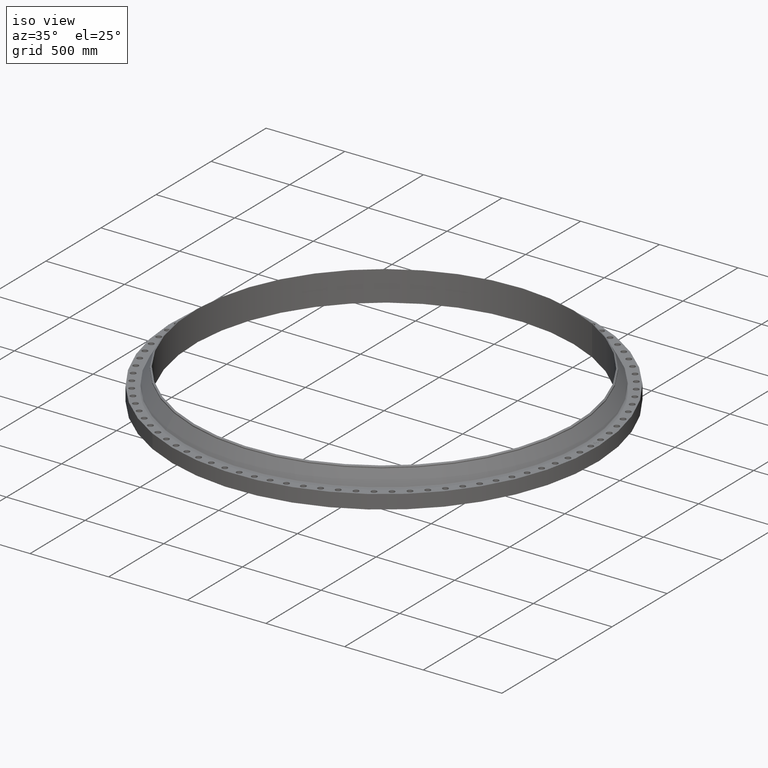
[diagram: clean part render]
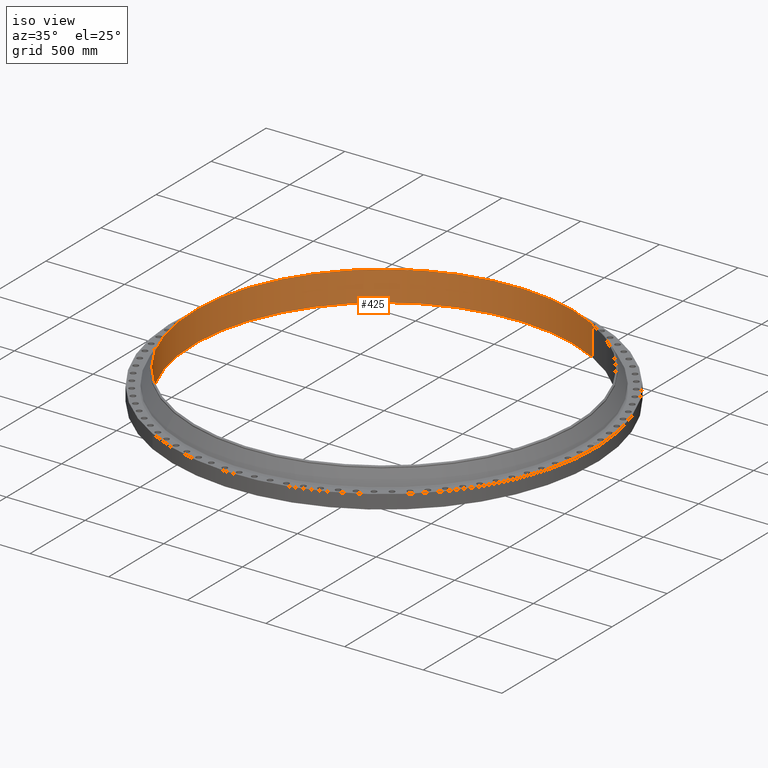
[diagram: tour spotlight — one face highlighted and labeled with its STEP entity id]
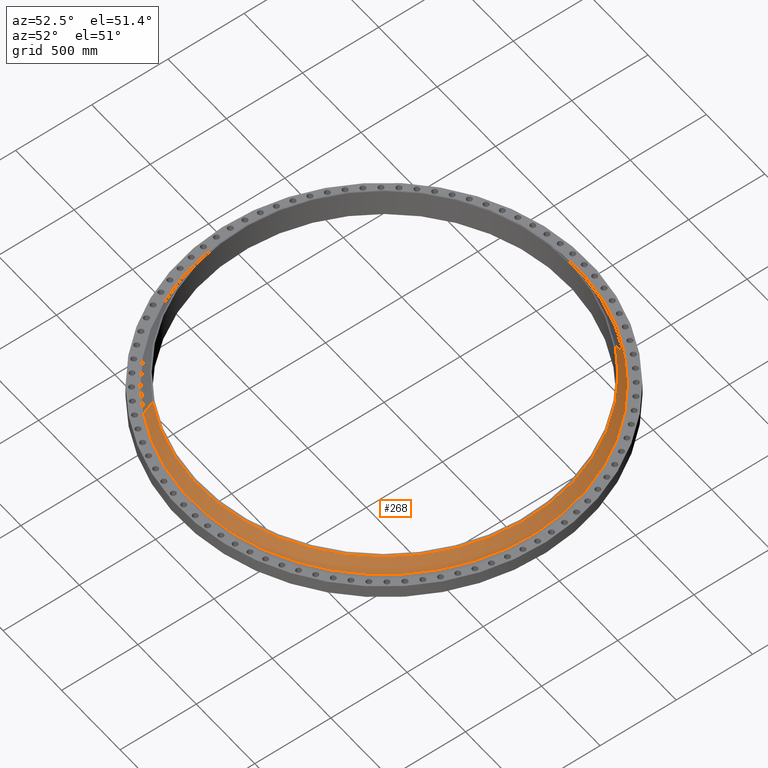
[diagram: tour spotlight — one face highlighted and labeled with its STEP entity id]
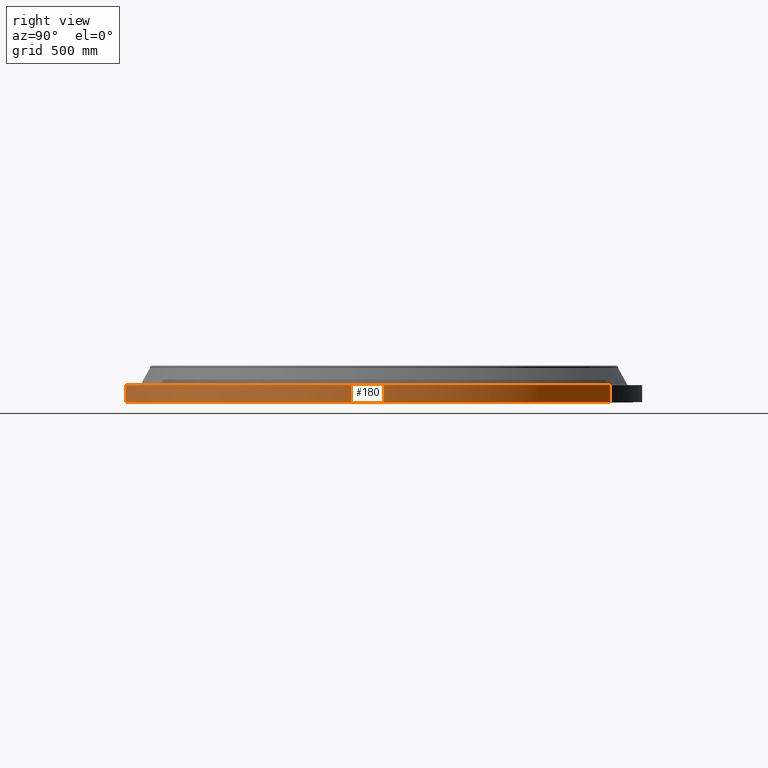
[diagram: tour spotlight — one face highlighted and labeled with its STEP entity id]
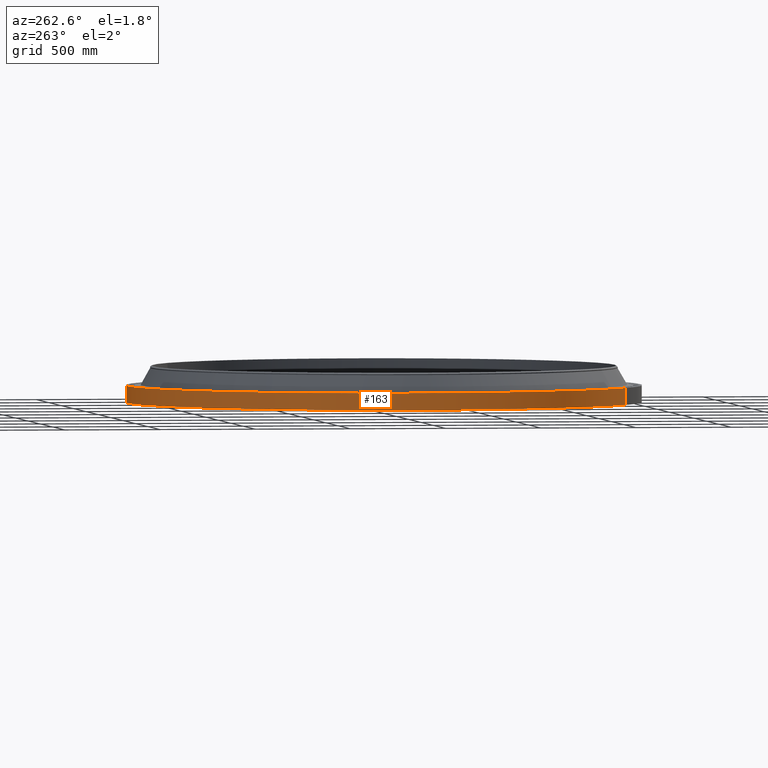
[diagram: tour spotlight — one face highlighted and labeled with its STEP entity id]
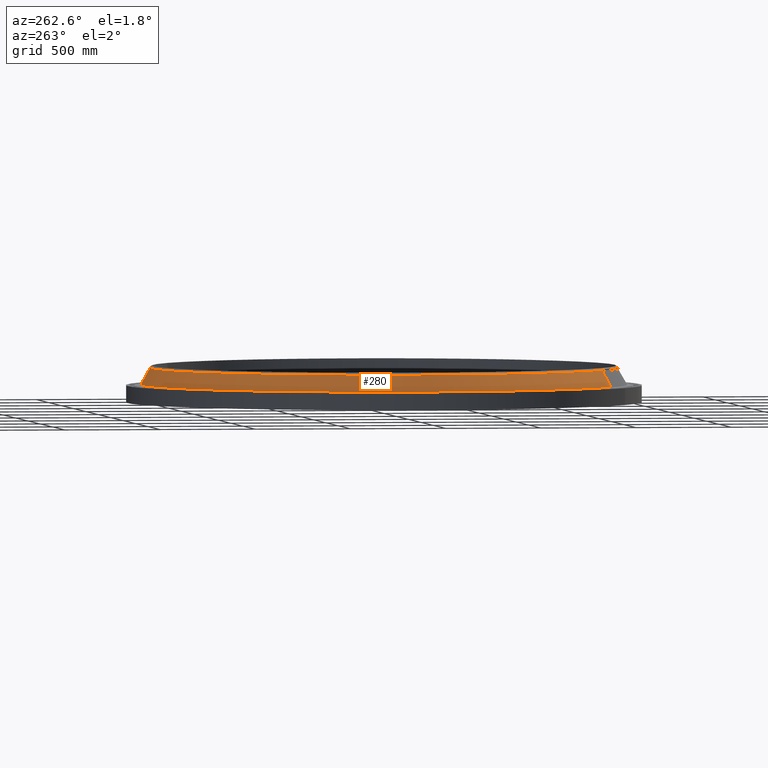
[diagram: tour spotlight — one face highlighted and labeled with its STEP entity id]
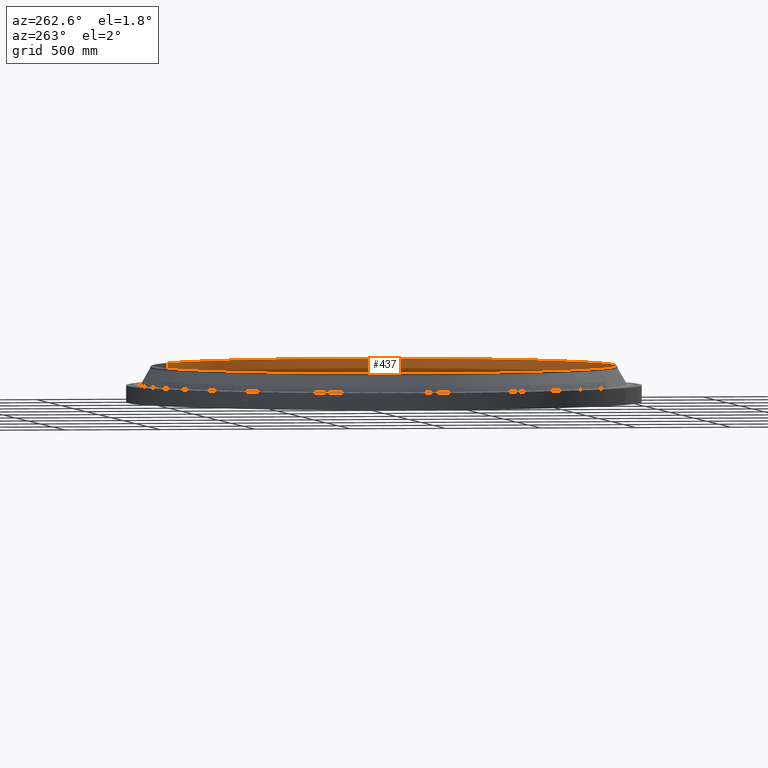
[diagram: tour spotlight — one face highlighted and labeled with its STEP entity id]
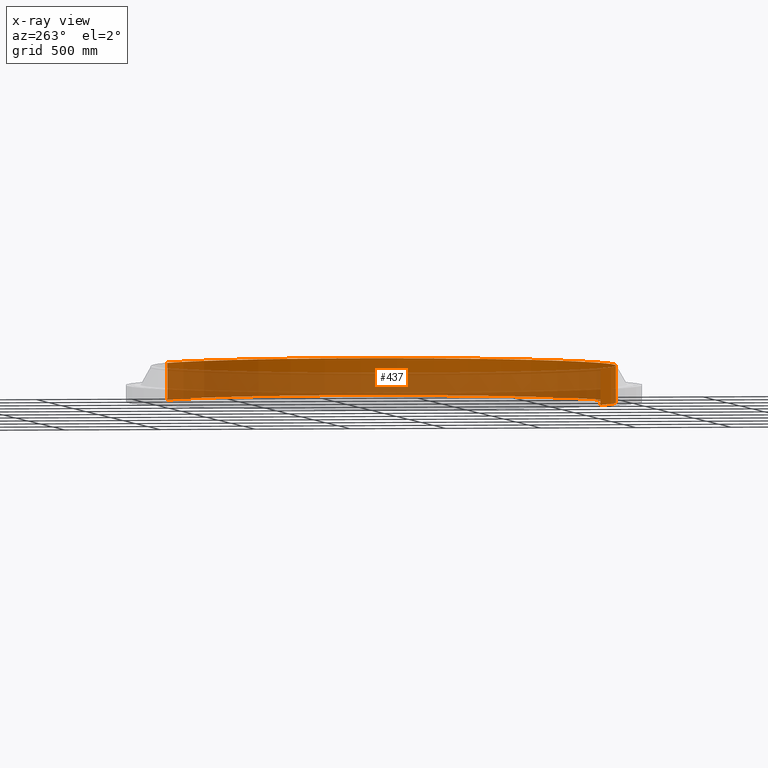
[diagram: x-ray of the same camera — body ghosted, this tour face saturated]
A machine part: a face-by-face anatomy tour. The part has 665 B-rep faces; the first image is the clean iso view, then the 6 largest visible faces are spotlighted one at a time (largest first), each with its STEP entity span.

Face 1 — iso view, entity #425. In plain terms, the highlighted cylindrical surface (partial cylindrical patch) has radius 1209.67 mm, axis along (0, 0, -1).
Definition (entity closure, byte-faithful):
#378=AXIS2_PLACEMENT_3D('Circle Axis2P3D',#376,#377,$) ;
#398=AXIS2_PLACEMENT_3D('Cylinder Axis2P3D',#395,#396,#397) ;
#409=AXIS2_PLACEMENT_3D('Circle Axis2P3D',#407,#408,$) ;
#376=CARTESIAN_POINT('Axis2P3D Location',(0.,0.,7.50000000003)) ;
#380=CARTESIAN_POINT('Vertex',(-22.8326412761,-41.7948695102,7.50000000003)) ;
#382=CARTESIAN_POINT('Vertex',(22.8326412761,41.7948695102,7.50000000003)) ;
#395=CARTESIAN_POINT('Axis2P3D Location',(0.,0.,3.76875000002)) ;
#400=CARTESIAN_POINT('Line Origine',(-22.8326412761,-41.7948695102,3.71875000001)) ;
#404=CARTESIAN_POINT('Vertex',(-22.8326412761,-41.7948695102,-0.0625000000003)) ;
#407=CARTESIAN_POINT('Axis2P3D Location',(0.,0.,-0.0625000000003)) ;
#411=CARTESIAN_POINT('Vertex',(22.8326412761,41.7948695102,-0.0625000000003)) ;
#414=CARTESIAN_POINT('Line Origine',(22.8326412761,41.7948695102,3.71875000001)) ;
#377=DIRECTION('Axis2P3D Direction',(0.,-0.,-0.0393700787402)) ;
#396=DIRECTION('Axis2P3D Direction',(0.,0.,-0.0393700787402)) ;
#397=DIRECTION('Axis2P3D XDirection',(0.0188750212049,0.0345504945626,0.)) ;
#401=DIRECTION('Vector Direction',(0.,0.,-0.0393700787402)) ;
#408=DIRECTION('Axis2P3D Direction',(0.,0.,-0.0393700787402)) ;
#415=DIRECTION('Vector Direction',(0.,0.,-0.0393700787402)) ;
#402=VECTOR('Line Direction',#401,0.0393700787402) ;
#416=VECTOR('Line Direction',#415,0.0393700787402) ;
#420=ORIENTED_EDGE('',*,*,#406,.T.) ;
#421=ORIENTED_EDGE('',*,*,#413,.T.) ;
#422=ORIENTED_EDGE('',*,*,#418,.F.) ;
#423=ORIENTED_EDGE('',*,*,#384,.F.) ;
#425=ADVANCED_FACE('PartBody',(#424),#399,.F.) ;
#379=CIRCLE('generated circle',#378,47.6250000002) ;
#410=CIRCLE('generated circle',#409,47.6250000002) ;
#399=CYLINDRICAL_SURFACE('generated cylinder',#398,47.6250000002) ;
#384=EDGE_CURVE('',#381,#383,#379,.T.) ;
#406=EDGE_CURVE('',#381,#405,#403,.T.) ;
#413=EDGE_CURVE('',#405,#412,#410,.T.) ;
#418=EDGE_CURVE('',#383,#412,#417,.T.) ;
#419=EDGE_LOOP('',(#420,#421,#422,#423)) ;
#424=FACE_OUTER_BOUND('',#419,.T.) ;
#403=LINE('Line',#400,#402) ;
#417=LINE('Line',#414,#416) ;
#381=VERTEX_POINT('',#380) ;
#383=VERTEX_POINT('',#382) ;
#405=VERTEX_POINT('',#404) ;
#412=VERTEX_POINT('',#411) ;

Face 2 — auxiliary view, entity #268. In plain terms, the highlighted conical surface has half-angle 29.577 deg.
Definition (entity closure, byte-faithful):
#204=AXIS2_PLACEMENT_3D('Circle Axis2P3D',#202,#203,$) ;
#241=AXIS2_PLACEMENT_3D('Cone Axis2P3D',#238,#239,#240) ;
#252=AXIS2_PLACEMENT_3D('Circle Axis2P3D',#250,#251,$) ;
#199=CARTESIAN_POINT('Vertex',(23.9368291004,43.816071765,3.62660339613)) ;
#202=CARTESIAN_POINT('Axis2P3D Location',(0.,0.,3.62660339613)) ;
#206=CARTESIAN_POINT('Vertex',(-23.9368291004,-43.816071765,3.62660339613)) ;
#238=CARTESIAN_POINT('Axis2P3D Location',(0.,0.,7.02398984384)) ;
#243=CARTESIAN_POINT('Line Origine',(23.4746274767,42.970017368,5.32529661999)) ;
#247=CARTESIAN_POINT('Vertex',(23.0124258531,42.1239629709,7.02398984384)) ;
#250=CARTESIAN_POINT('Axis2P3D Location',(0.,0.,7.02398984384)) ;
#254=CARTESIAN_POINT('Vertex',(-23.0124258531,-42.1239629709,7.02398984384)) ;
#257=CARTESIAN_POINT('Line Origine',(-23.4746274767,-42.970017368,5.32529661999)) ;
#203=DIRECTION('Axis2P3D Direction',(0.,0.,-0.0393700787402)) ;
#239=DIRECTION('Axis2P3D Direction',(0.,0.,-0.0393700787402)) ;
#240=DIRECTION('Axis2P3D XDirection',(-0.0188750212049,-0.0345504945626,0.)) ;
#244=DIRECTION('Vector Direction',(0.00931645405992,0.0170536547666,-0.0342400298314)) ;
#251=DIRECTION('Axis2P3D Direction',(0.,0.,-0.0393700787402)) ;
#258=DIRECTION('Vector Direction',(-0.00931645405992,-0.0170536547666,-0.0342400298314)) ;
#245=VECTOR('Line Direction',#244,0.0393700787402) ;
#259=VECTOR('Line Direction',#258,0.0393700787402) ;
#263=ORIENTED_EDGE('',*,*,#208,.F.) ;
#264=ORIENTED_EDGE('',*,*,#249,.T.) ;
#265=ORIENTED_EDGE('',*,*,#256,.T.) ;
#266=ORIENTED_EDGE('',*,*,#261,.F.) ;
#268=ADVANCED_FACE('PartBody',(#267),#242,.T.) ;
#205=CIRCLE('generated circle',#204,49.9281476954) ;
#253=CIRCLE('generated circle',#252,48.0000000002) ;
#242=CONICAL_SURFACE('Cone',#241,48.0000000002,0.516208704301) ;
#208=EDGE_CURVE('',#200,#207,#205,.T.) ;
#249=EDGE_CURVE('',#200,#248,#246,.F.) ;
#256=EDGE_CURVE('',#248,#255,#253,.T.) ;
#261=EDGE_CURVE('',#207,#255,#260,.F.) ;
#262=EDGE_LOOP('',(#263,#264,#265,#266)) ;
#267=FACE_OUTER_BOUND('',#262,.T.) ;
#246=LINE('Line',#243,#245) ;
#260=LINE('Line',#257,#259) ;
#200=VERTEX_POINT('',#199) ;
#207=VERTEX_POINT('',#206) ;
#248=VERTEX_POINT('',#247) ;
#255=VERTEX_POINT('',#254) ;

Face 3 — right view, entity #180. In plain terms, the highlighted cylindrical surface (partial cylindrical patch) has radius 1346.2 mm, axis along (0, 0, -1).
Definition (entity closure, byte-faithful):
#127=AXIS2_PLACEMENT_3D('Cylinder Axis2P3D',#124,#125,#126) ;
#166=AXIS2_PLACEMENT_3D('Circle Axis2P3D',#164,#165,$) ;
#171=AXIS2_PLACEMENT_3D('Circle Axis2P3D',#169,#170,$) ;
#124=CARTESIAN_POINT('Axis2P3D Location',(0.,0.,3.76875000002)) ;
#133=CARTESIAN_POINT('Vertex',(-25.4095535461,-46.5118757804,6.15430716013E-015)) ;
#135=CARTESIAN_POINT('Vertex',(25.4095535461,46.5118757804,6.15430716013E-015)) ;
#138=CARTESIAN_POINT('Line Origine',(-25.4095535461,-46.5118757804,1.75000000001)) ;
#142=CARTESIAN_POINT('Vertex',(-25.4095535461,-46.5118757804,3.50000000001)) ;
#149=CARTESIAN_POINT('Vertex',(25.4095535461,46.5118757804,3.50000000001)) ;
#152=CARTESIAN_POINT('Line Origine',(25.4095535461,46.5118757804,1.75000000001)) ;
#164=CARTESIAN_POINT('Axis2P3D Location',(0.,0.,6.71378962923E-015)) ;
#169=CARTESIAN_POINT('Axis2P3D Location',(0.,0.,3.50000000001)) ;
#125=DIRECTION('Axis2P3D Direction',(0.,0.,-0.0393700787402)) ;
#126=DIRECTION('Axis2P3D XDirection',(0.0188750212049,0.0345504945626,0.)) ;
#139=DIRECTION('Vector Direction',(0.,0.,-0.0393700787402)) ;
#153=DIRECTION('Vector Direction',(0.,0.,-0.0393700787402)) ;
#165=DIRECTION('Axis2P3D Direction',(0.,0.,-0.0393700787402)) ;
#170=DIRECTION('Axis2P3D Direction',(0.,0.,-0.0393700787402)) ;
#140=VECTOR('Line Direction',#139,0.0393700787402) ;
#154=VECTOR('Line Direction',#153,0.0393700787402) ;
#175=ORIENTED_EDGE('',*,*,#168,.F.) ;
#176=ORIENTED_EDGE('',*,*,#156,.T.) ;
#177=ORIENTED_EDGE('',*,*,#173,.T.) ;
#178=ORIENTED_EDGE('',*,*,#144,.F.) ;
#180=ADVANCED_FACE('PartBody',(#179),#128,.T.) ;
#167=CIRCLE('generated circle',#166,53.0000000002) ;
#172=CIRCLE('generated circle',#171,53.0000000002) ;
#128=CYLINDRICAL_SURFACE('generated cylinder',#127,53.0000000002) ;
#144=EDGE_CURVE('',#134,#143,#141,.F.) ;
#156=EDGE_CURVE('',#136,#150,#155,.F.) ;
#168=EDGE_CURVE('',#136,#134,#167,.T.) ;
#173=EDGE_CURVE('',#150,#143,#172,.T.) ;
#174=EDGE_LOOP('',(#175,#176,#177,#178)) ;
#179=FACE_OUTER_BOUND('',#174,.T.) ;
#141=LINE('Line',#138,#140) ;
#155=LINE('Line',#152,#154) ;
#134=VERTEX_POINT('',#133) ;
#136=VERTEX_POINT('',#135) ;
#143=VERTEX_POINT('',#142) ;
#150=VERTEX_POINT('',#149) ;

Face 4 — auxiliary view, entity #163. In plain terms, the highlighted cylindrical surface (partial cylindrical patch) has radius 1346.2 mm, axis along (0, 0, -1).
Definition (entity closure, byte-faithful):
#127=AXIS2_PLACEMENT_3D('Cylinder Axis2P3D',#124,#125,#126) ;
#131=AXIS2_PLACEMENT_3D('Circle Axis2P3D',#129,#130,$) ;
#147=AXIS2_PLACEMENT_3D('Circle Axis2P3D',#145,#146,$) ;
#124=CARTESIAN_POINT('Axis2P3D Location',(0.,0.,3.76875000002)) ;
#129=CARTESIAN_POINT('Axis2P3D Location',(0.,0.,6.71378962923E-015)) ;
#133=CARTESIAN_POINT('Vertex',(-25.4095535461,-46.5118757804,6.15430716013E-015)) ;
#135=CARTESIAN_POINT('Vertex',(25.4095535461,46.5118757804,6.15430716013E-015)) ;
#138=CARTESIAN_POINT('Line Origine',(-25.4095535461,-46.5118757804,1.75000000001)) ;
#142=CARTESIAN_POINT('Vertex',(-25.4095535461,-46.5118757804,3.50000000001)) ;
#145=CARTESIAN_POINT('Axis2P3D Location',(0.,0.,3.50000000001)) ;
#149=CARTESIAN_POINT('Vertex',(25.4095535461,46.5118757804,3.50000000001)) ;
#152=CARTESIAN_POINT('Line Origine',(25.4095535461,46.5118757804,1.75000000001)) ;
#125=DIRECTION('Axis2P3D Direction',(0.,0.,-0.0393700787402)) ;
#126=DIRECTION('Axis2P3D XDirection',(0.0188750212049,0.0345504945626,0.)) ;
#130=DIRECTION('Axis2P3D Direction',(0.,0.,-0.0393700787402)) ;
#139=DIRECTION('Vector Direction',(0.,0.,-0.0393700787402)) ;
#146=DIRECTION('Axis2P3D Direction',(0.,0.,-0.0393700787402)) ;
#153=DIRECTION('Vector Direction',(0.,0.,-0.0393700787402)) ;
#140=VECTOR('Line Direction',#139,0.0393700787402) ;
#154=VECTOR('Line Direction',#153,0.0393700787402) ;
#158=ORIENTED_EDGE('',*,*,#137,.F.) ;
#159=ORIENTED_EDGE('',*,*,#144,.T.) ;
#160=ORIENTED_EDGE('',*,*,#151,.T.) ;
#161=ORIENTED_EDGE('',*,*,#156,.F.) ;
#163=ADVANCED_FACE('PartBody',(#162),#128,.T.) ;
#132=CIRCLE('generated circle',#131,53.0000000002) ;
#148=CIRCLE('generated circle',#147,53.0000000002) ;
#128=CYLINDRICAL_SURFACE('generated cylinder',#127,53.0000000002) ;
#137=EDGE_CURVE('',#134,#136,#132,.T.) ;
#144=EDGE_CURVE('',#134,#143,#141,.F.) ;
#151=EDGE_CURVE('',#143,#150,#148,.T.) ;
#156=EDGE_CURVE('',#136,#150,#155,.F.) ;
#157=EDGE_LOOP('',(#158,#159,#160,#161)) ;
#162=FACE_OUTER_BOUND('',#157,.T.) ;
#141=LINE('Line',#138,#140) ;
#155=LINE('Line',#152,#154) ;
#134=VERTEX_POINT('',#133) ;
#136=VERTEX_POINT('',#135) ;
#143=VERTEX_POINT('',#142) ;
#150=VERTEX_POINT('',#149) ;

Face 5 — auxiliary view, entity #280. In plain terms, the highlighted conical surface has half-angle 29.577 deg.
Definition (entity closure, byte-faithful):
#228=AXIS2_PLACEMENT_3D('Circle Axis2P3D',#226,#227,$) ;
#241=AXIS2_PLACEMENT_3D('Cone Axis2P3D',#238,#239,#240) ;
#271=AXIS2_PLACEMENT_3D('Circle Axis2P3D',#269,#270,$) ;
#199=CARTESIAN_POINT('Vertex',(23.9368291004,43.816071765,3.62660339613)) ;
#206=CARTESIAN_POINT('Vertex',(-23.9368291004,-43.816071765,3.62660339613)) ;
#226=CARTESIAN_POINT('Axis2P3D Location',(0.,0.,3.62660339613)) ;
#238=CARTESIAN_POINT('Axis2P3D Location',(0.,0.,7.02398984384)) ;
#243=CARTESIAN_POINT('Line Origine',(23.4746274767,42.970017368,5.32529661999)) ;
#247=CARTESIAN_POINT('Vertex',(23.0124258531,42.1239629709,7.02398984384)) ;
#254=CARTESIAN_POINT('Vertex',(-23.0124258531,-42.1239629709,7.02398984384)) ;
#257=CARTESIAN_POINT('Line Origine',(-23.4746274767,-42.970017368,5.32529661999)) ;
#269=CARTESIAN_POINT('Axis2P3D Location',(0.,0.,7.02398984384)) ;
#227=DIRECTION('Axis2P3D Direction',(0.,0.,-0.0393700787402)) ;
#239=DIRECTION('Axis2P3D Direction',(0.,0.,-0.0393700787402)) ;
#240=DIRECTION('Axis2P3D XDirection',(-0.0188750212049,-0.0345504945626,0.)) ;
#244=DIRECTION('Vector Direction',(0.00931645405992,0.0170536547666,-0.0342400298314)) ;
#258=DIRECTION('Vector Direction',(-0.00931645405992,-0.0170536547666,-0.0342400298314)) ;
#270=DIRECTION('Axis2P3D Direction',(0.,0.,-0.0393700787402)) ;
#245=VECTOR('Line Direction',#244,0.0393700787402) ;
#259=VECTOR('Line Direction',#258,0.0393700787402) ;
#275=ORIENTED_EDGE('',*,*,#230,.F.) ;
#276=ORIENTED_EDGE('',*,*,#261,.T.) ;
#277=ORIENTED_EDGE('',*,*,#273,.T.) ;
#278=ORIENTED_EDGE('',*,*,#249,.F.) ;
#280=ADVANCED_FACE('PartBody',(#279),#242,.T.) ;
#229=CIRCLE('generated circle',#228,49.9281476954) ;
#272=CIRCLE('generated circle',#271,48.0000000002) ;
#242=CONICAL_SURFACE('Cone',#241,48.0000000002,0.516208704301) ;
#230=EDGE_CURVE('',#207,#200,#229,.T.) ;
#249=EDGE_CURVE('',#200,#248,#246,.F.) ;
#261=EDGE_CURVE('',#207,#255,#260,.F.) ;
#273=EDGE_CURVE('',#255,#248,#272,.T.) ;
#274=EDGE_LOOP('',(#275,#276,#277,#278)) ;
#279=FACE_OUTER_BOUND('',#274,.T.) ;
#246=LINE('Line',#243,#245) ;
#260=LINE('Line',#257,#259) ;
#200=VERTEX_POINT('',#199) ;
#207=VERTEX_POINT('',#206) ;
#248=VERTEX_POINT('',#247) ;
#255=VERTEX_POINT('',#254) ;

Face 6 — auxiliary view, entity #437. An x-ray twin of the same camera follows (body ghosted, this face saturated) — the face is partly hidden behind the body. In plain terms, the highlighted cylindrical surface (partial cylindrical patch) has radius 1209.67 mm, axis along (0, 0, -1).
Definition (entity closure, byte-faithful):
#387=AXIS2_PLACEMENT_3D('Circle Axis2P3D',#385,#386,$) ;
#398=AXIS2_PLACEMENT_3D('Cylinder Axis2P3D',#395,#396,#397) ;
#428=AXIS2_PLACEMENT_3D('Circle Axis2P3D',#426,#427,$) ;
#380=CARTESIAN_POINT('Vertex',(-22.8326412761,-41.7948695102,7.50000000003)) ;
#382=CARTESIAN_POINT('Vertex',(22.8326412761,41.7948695102,7.50000000003)) ;
#385=CARTESIAN_POINT('Axis2P3D Location',(1.34275792585E-014,1.1189649382E-015,7.50000000003)) ;
#395=CARTESIAN_POINT('Axis2P3D Location',(0.,0.,3.76875000002)) ;
#400=CARTESIAN_POINT('Line Origine',(-22.8326412761,-41.7948695102,3.71875000001)) ;
#404=CARTESIAN_POINT('Vertex',(-22.8326412761,-41.7948695102,-0.0625000000003)) ;
#411=CARTESIAN_POINT('Vertex',(22.8326412761,41.7948695102,-0.0625000000003)) ;
#414=CARTESIAN_POINT('Line Origine',(22.8326412761,41.7948695102,3.71875000001)) ;
#426=CARTESIAN_POINT('Axis2P3D Location',(0.,0.,-0.0625000000003)) ;
#386=DIRECTION('Axis2P3D Direction',(0.,-0.,-0.0393700787402)) ;
#396=DIRECTION('Axis2P3D Direction',(0.,0.,-0.0393700787402)) ;
#397=DIRECTION('Axis2P3D XDirection',(0.0188750212049,0.0345504945626,0.)) ;
#401=DIRECTION('Vector Direction',(0.,0.,-0.0393700787402)) ;
#415=DIRECTION('Vector Direction',(0.,0.,-0.0393700787402)) ;
#427=DIRECTION('Axis2P3D Direction',(0.,0.,-0.0393700787402)) ;
#402=VECTOR('Line Direction',#401,0.0393700787402) ;
#416=VECTOR('Line Direction',#415,0.0393700787402) ;
#432=ORIENTED_EDGE('',*,*,#418,.T.) ;
#433=ORIENTED_EDGE('',*,*,#430,.T.) ;
#434=ORIENTED_EDGE('',*,*,#406,.F.) ;
#435=ORIENTED_EDGE('',*,*,#389,.F.) ;
#437=ADVANCED_FACE('PartBody',(#436),#399,.F.) ;
#388=CIRCLE('generated circle',#387,47.6250000002) ;
#429=CIRCLE('generated circle',#428,47.6250000002) ;
#399=CYLINDRICAL_SURFACE('generated cylinder',#398,47.6250000002) ;
#389=EDGE_CURVE('',#383,#381,#388,.T.) ;
#406=EDGE_CURVE('',#381,#405,#403,.T.) ;
#418=EDGE_CURVE('',#383,#412,#417,.T.) ;
#430=EDGE_CURVE('',#412,#405,#429,.T.) ;
#431=EDGE_LOOP('',(#432,#433,#434,#435)) ;
#436=FACE_OUTER_BOUND('',#431,.T.) ;
#403=LINE('Line',#400,#402) ;
#417=LINE('Line',#414,#416) ;
#381=VERTEX_POINT('',#380) ;
#383=VERTEX_POINT('',#382) ;
#405=VERTEX_POINT('',#404) ;
#412=VERTEX_POINT('',#411) ;